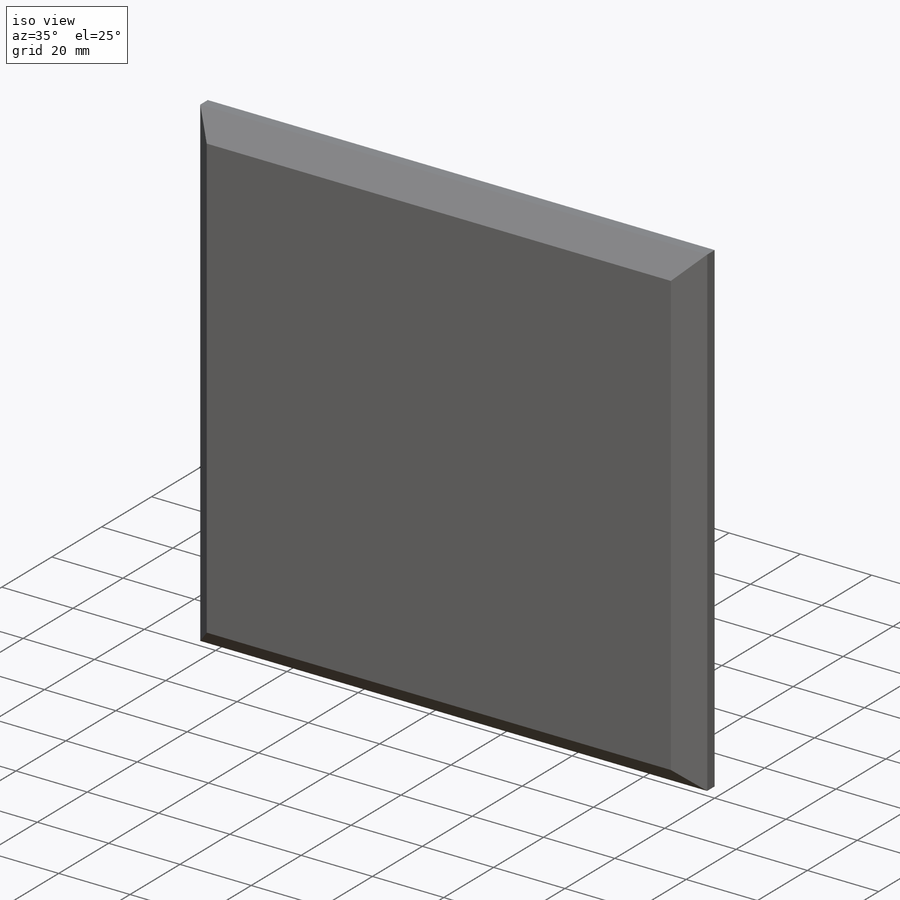
[diagram: iso view]
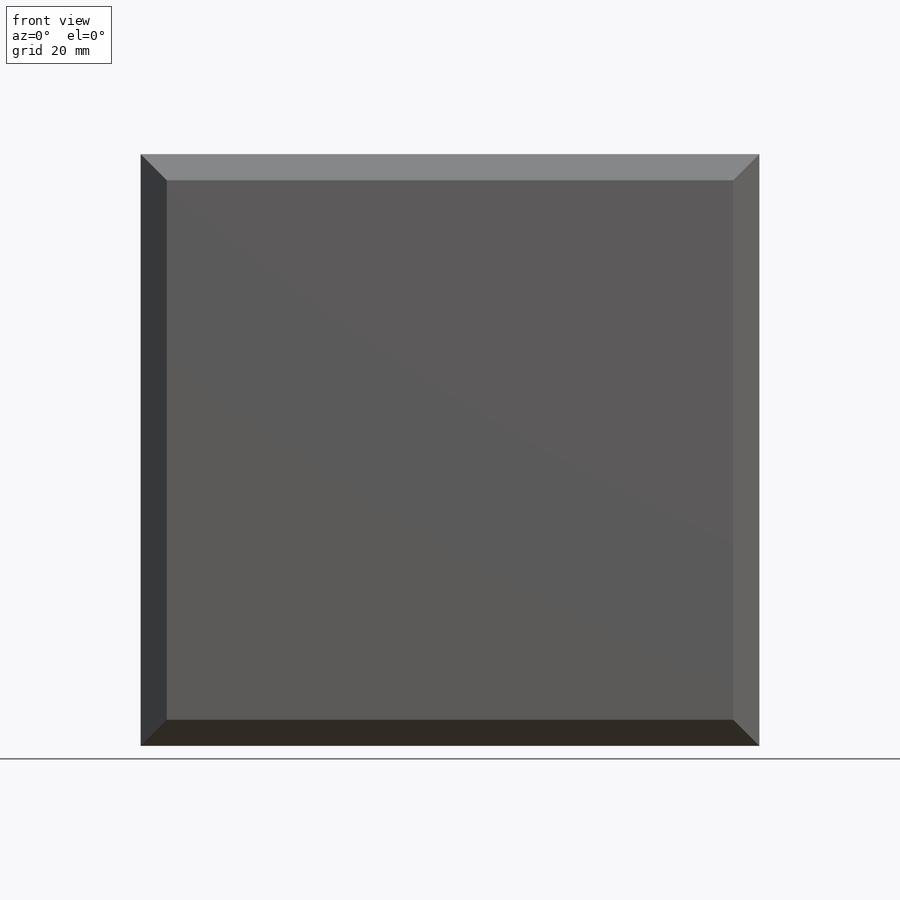
[diagram: front view]
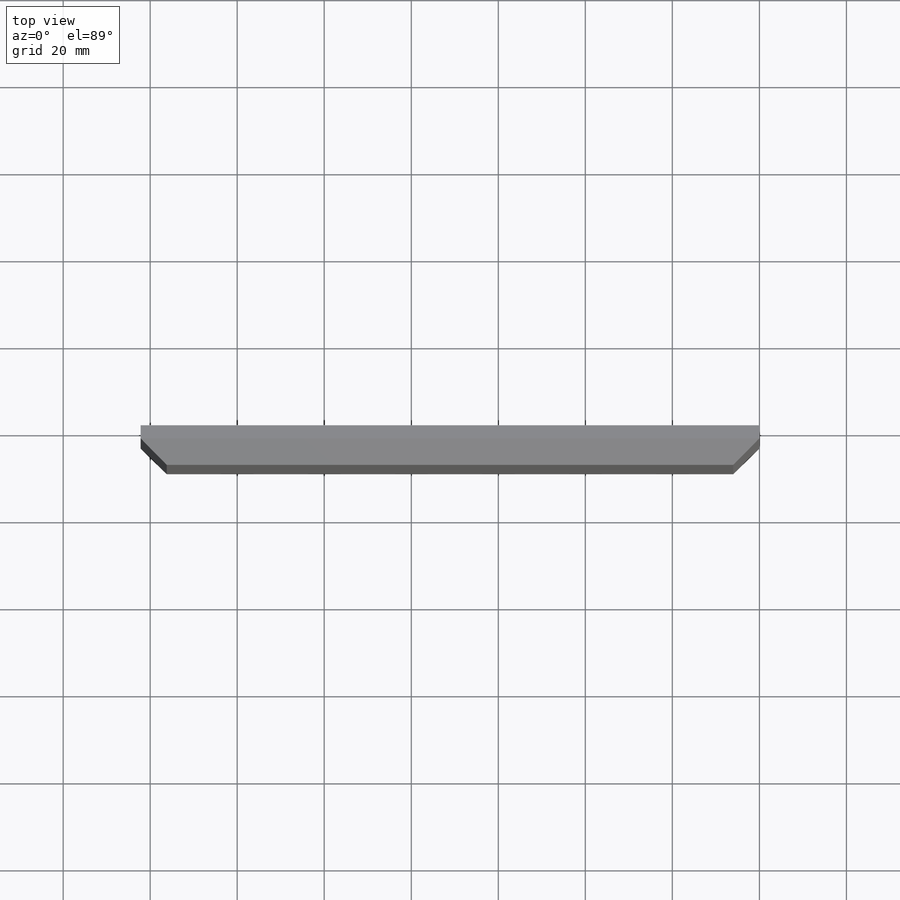
[diagram: top view]
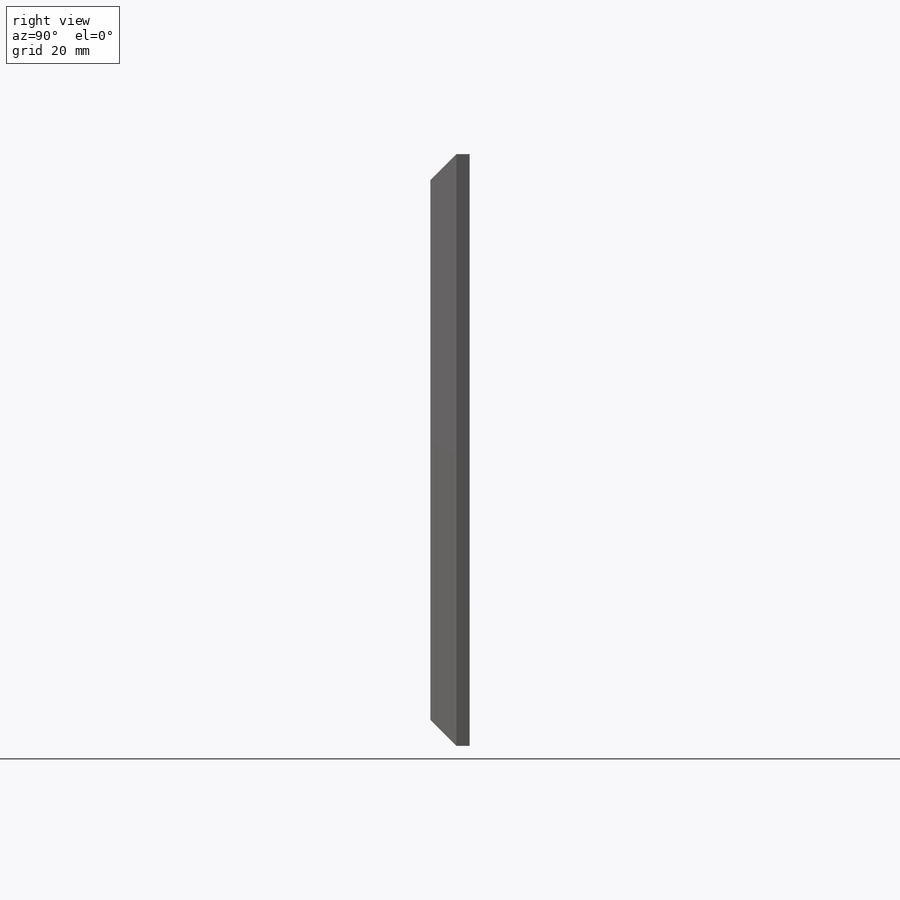
[diagram: right view]
SOLIDWORKS PART (.sldprt)
format: sldprt  version: not decoded by parser v0  size: 264,192 bytes
history: native  units: mm
features: sketch x3, extrude x2, chamfer x2, material x1, cut_extrude x1 (+13 scaffold rows collapsed)
feature tree (22):
  scaffold x13  (default folders/planes/origin — collapsed)
  material  "Material <not specified>"
  sketch  "Sketch1"  dims[c1.D2=6.0mm c1.D3=6.0mm c1.D4=6.0mm c1.D5=6.0mm c1.D6=6.0mm c1.D1=6.0mm c2.D2=6.0mm c2.D7=6.0mm c2.D5=6.0mm c2.D8=6.0mm c2.D9=6.0mm c2.D4=6.0mm c2.D6=6.0mm c2.D10=6.0mm c3.D6=5.0mm c3.D7=132.2mm c3.D1=5.0mm c3.D3=1.5mm c4.D7=1.5mm c4.D8=1.5mm c4.D9=1.5mm c4.D10=~14.418427mm c4.D6=1.5mm c5.D10=1.5mm c5.D11=142.2mm c5.D1=0.0mm]
  extrude  "Boss-Extrude1"  Depth=6mm
  sketch  "Sketch2"
  extrude  "Boss-Extrude2"  Depth=3mm
  chamfer  "Chamfer1"  Distance=6mm Angle=45deg
  chamfer  "Chamfer2"  Distance=4mm Angle=45deg
  sketch  "Sketch3"  dims[D1=3.1mm D2=3.1mm D3=3.1mm D4=3.1mm]
  cut_extrude  "Cut-Extrude1"  Depth=2.3mm
decode coverage: 7 of 8 modeling features carry decoded parameters
note: ~ marks probable driven/reference dimensions
note: suppression state not decoded; provenance and decode notes live in map.json
